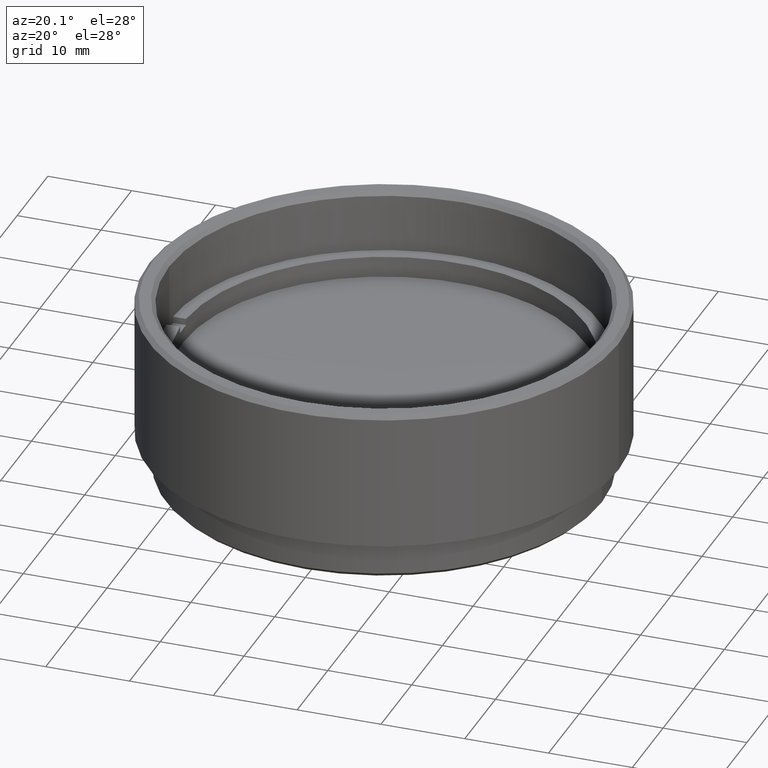
[diagram: clean part render]
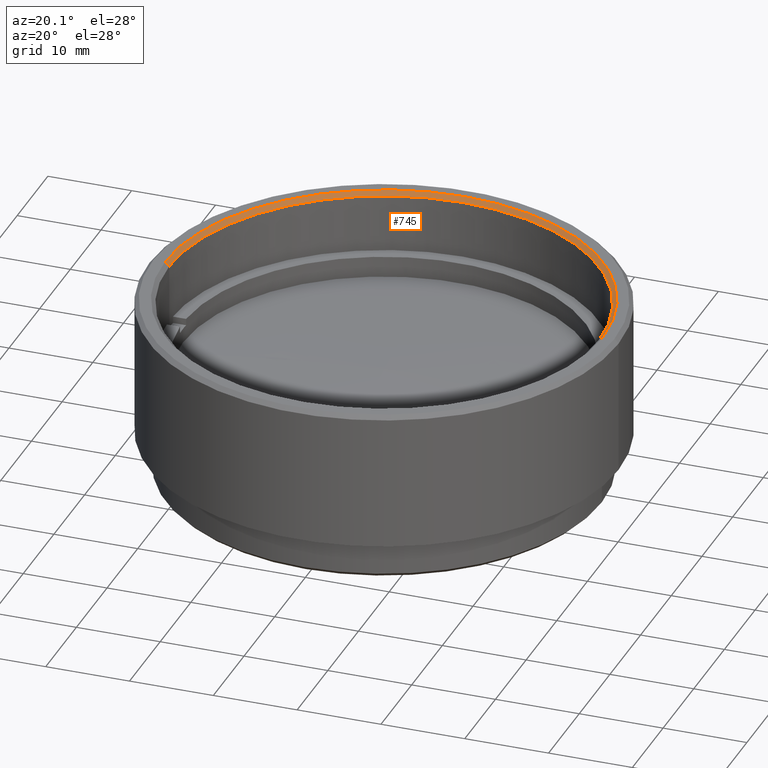
[diagram: same view with one face highlighted and labeled with its STEP entity id]
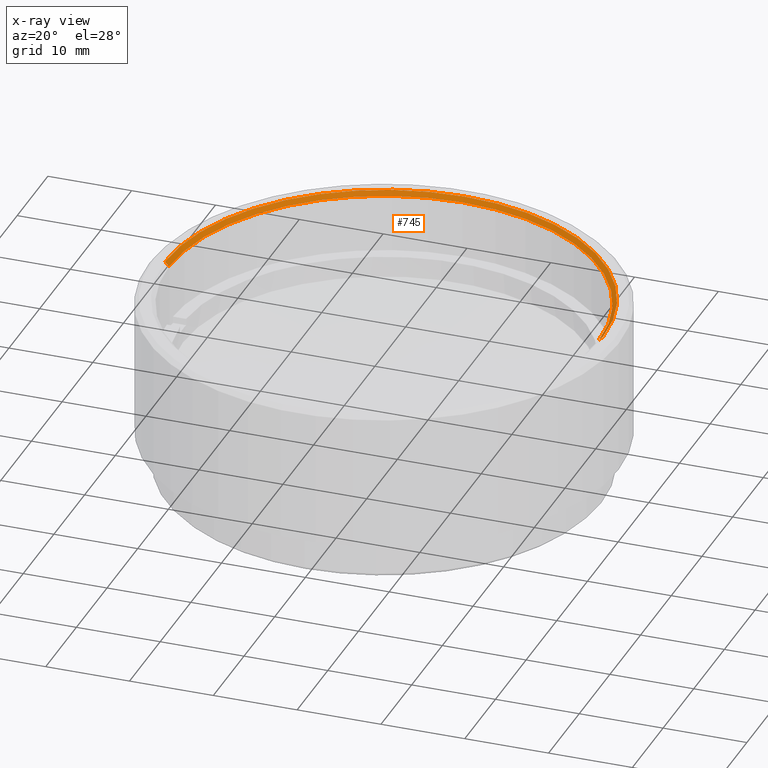
[diagram: x-ray of the same camera — body ghosted, the highlighted face saturated]
A machine part, auxiliary view. The second image highlights one B-rep face of the part: STEP entity #745.
The next image is the same camera in x-ray: the body ghosted, the highlighted face saturated — about 0% of this face is hidden behind the body in this view.
In plain terms, the highlighted conical surface has half-angle 45 deg.
Its self-contained STEP definition (entity closure, byte-faithful):
#11 = FACE_OUTER_BOUND ( 'NONE', #1654, .T. ) ;
#39 = CARTESIAN_POINT ( 'NONE',  ( 0.000000000000000000, 0.000000000000000000, 21.50000000000000000 ) ) ;
#86 = AXIS2_PLACEMENT_3D ( 'NONE', #704, #1235, #424 ) ;
#116 = DIRECTION ( 'NONE',  ( 0.000000000000000000, 0.000000000000000000, 1.000000000000000000 ) ) ;
#210 = ORIENTED_EDGE ( 'NONE', *, *, #1184, .F. ) ;
#228 = CONICAL_SURFACE ( 'NONE', #543, 25.62500000000000000, 0.7853981633974587151 ) ;
#288 = EDGE_CURVE ( 'NONE', #1131, #1316, #763, .T. ) ;
#355 = CARTESIAN_POINT ( 'NONE',  ( -25.62500000000000000, 3.138157422815092510E-15, 21.00000000000000355 ) ) ;
#356 = LINE ( 'NONE', #1425, #526 ) ;
#424 = DIRECTION ( 'NONE',  ( 1.000000000000000000, 0.000000000000000000, 0.000000000000000000 ) ) ;
#526 = VECTOR ( 'NONE', #623, 1000.000000000000114 ) ;
#543 = AXIS2_PLACEMENT_3D ( 'NONE', #1073, #116, #1196 ) ;
#555 = VERTEX_POINT ( 'NONE', #989 ) ;
#622 = VECTOR ( 'NONE', #897, 1000.000000000000114 ) ;
#623 = DIRECTION ( 'NONE',  ( 0.7071067811865549002, 0.000000000000000000, 0.7071067811865402453 ) ) ;
#645 = CARTESIAN_POINT ( 'NONE',  ( -25.62500000000000000, 3.138157422815092510E-15, 21.00000000000000355 ) ) ;
#704 = CARTESIAN_POINT ( 'NONE',  ( 0.000000000000000000, 0.000000000000000000, 21.00000000000000355 ) ) ;
#745 = ADVANCED_FACE ( 'NONE', ( #11 ), #228, .F. ) ;
#763 = LINE ( 'NONE', #355, #622 ) ;
#880 = EDGE_CURVE ( 'NONE', #1316, #555, #1612, .T. ) ;
#897 = DIRECTION ( 'NONE',  ( -0.7071067811865549002, 8.659560562355021605E-17, 0.7071067811865402453 ) ) ;
#989 = CARTESIAN_POINT ( 'NONE',  ( 26.12500000000000355, 0.000000000000000000, 21.50000000000000000 ) ) ;
#998 = VERTEX_POINT ( 'NONE', #1434 ) ;
#1028 = EDGE_CURVE ( 'NONE', #998, #555, #356, .T. ) ;
#1030 = ORIENTED_EDGE ( 'NONE', *, *, #880, .F. ) ;
#1073 = CARTESIAN_POINT ( 'NONE',  ( 0.000000000000000000, 0.000000000000000000, 21.00000000000000355 ) ) ;
#1076 = ORIENTED_EDGE ( 'NONE', *, *, #1028, .T. ) ;
#1124 = DIRECTION ( 'NONE',  ( 1.000000000000000000, 0.000000000000000000, 0.000000000000000000 ) ) ;
#1131 = VERTEX_POINT ( 'NONE', #645 ) ;
#1143 = CARTESIAN_POINT ( 'NONE',  ( -26.12500000000000355, 3.199389762772460873E-15, 21.50000000000000000 ) ) ;
#1162 = ORIENTED_EDGE ( 'NONE', *, *, #288, .F. ) ;
#1184 = EDGE_CURVE ( 'NONE', #998, #1131, #1623, .T. ) ;
#1196 = DIRECTION ( 'NONE',  ( 1.000000000000000000, 0.000000000000000000, 0.000000000000000000 ) ) ;
#1235 = DIRECTION ( 'NONE',  ( 0.000000000000000000, 0.000000000000000000, 1.000000000000000000 ) ) ;
#1316 = VERTEX_POINT ( 'NONE', #1143 ) ;
#1425 = CARTESIAN_POINT ( 'NONE',  ( 25.62500000000000000, 0.000000000000000000, 21.00000000000000355 ) ) ;
#1434 = CARTESIAN_POINT ( 'NONE',  ( 25.62500000000000000, 0.000000000000000000, 21.00000000000000355 ) ) ;
#1530 = DIRECTION ( 'NONE',  ( -0.000000000000000000, -0.000000000000000000, -1.000000000000000000 ) ) ;
#1555 = AXIS2_PLACEMENT_3D ( 'NONE', #39, #1530, #1124 ) ;
#1612 = CIRCLE ( 'NONE', #1555, 26.12500000000000355 ) ;
#1623 = CIRCLE ( 'NONE', #86, 25.62500000000000000 ) ;
#1654 = EDGE_LOOP ( 'NONE', ( #1162, #210, #1076, #1030 ) ) ;